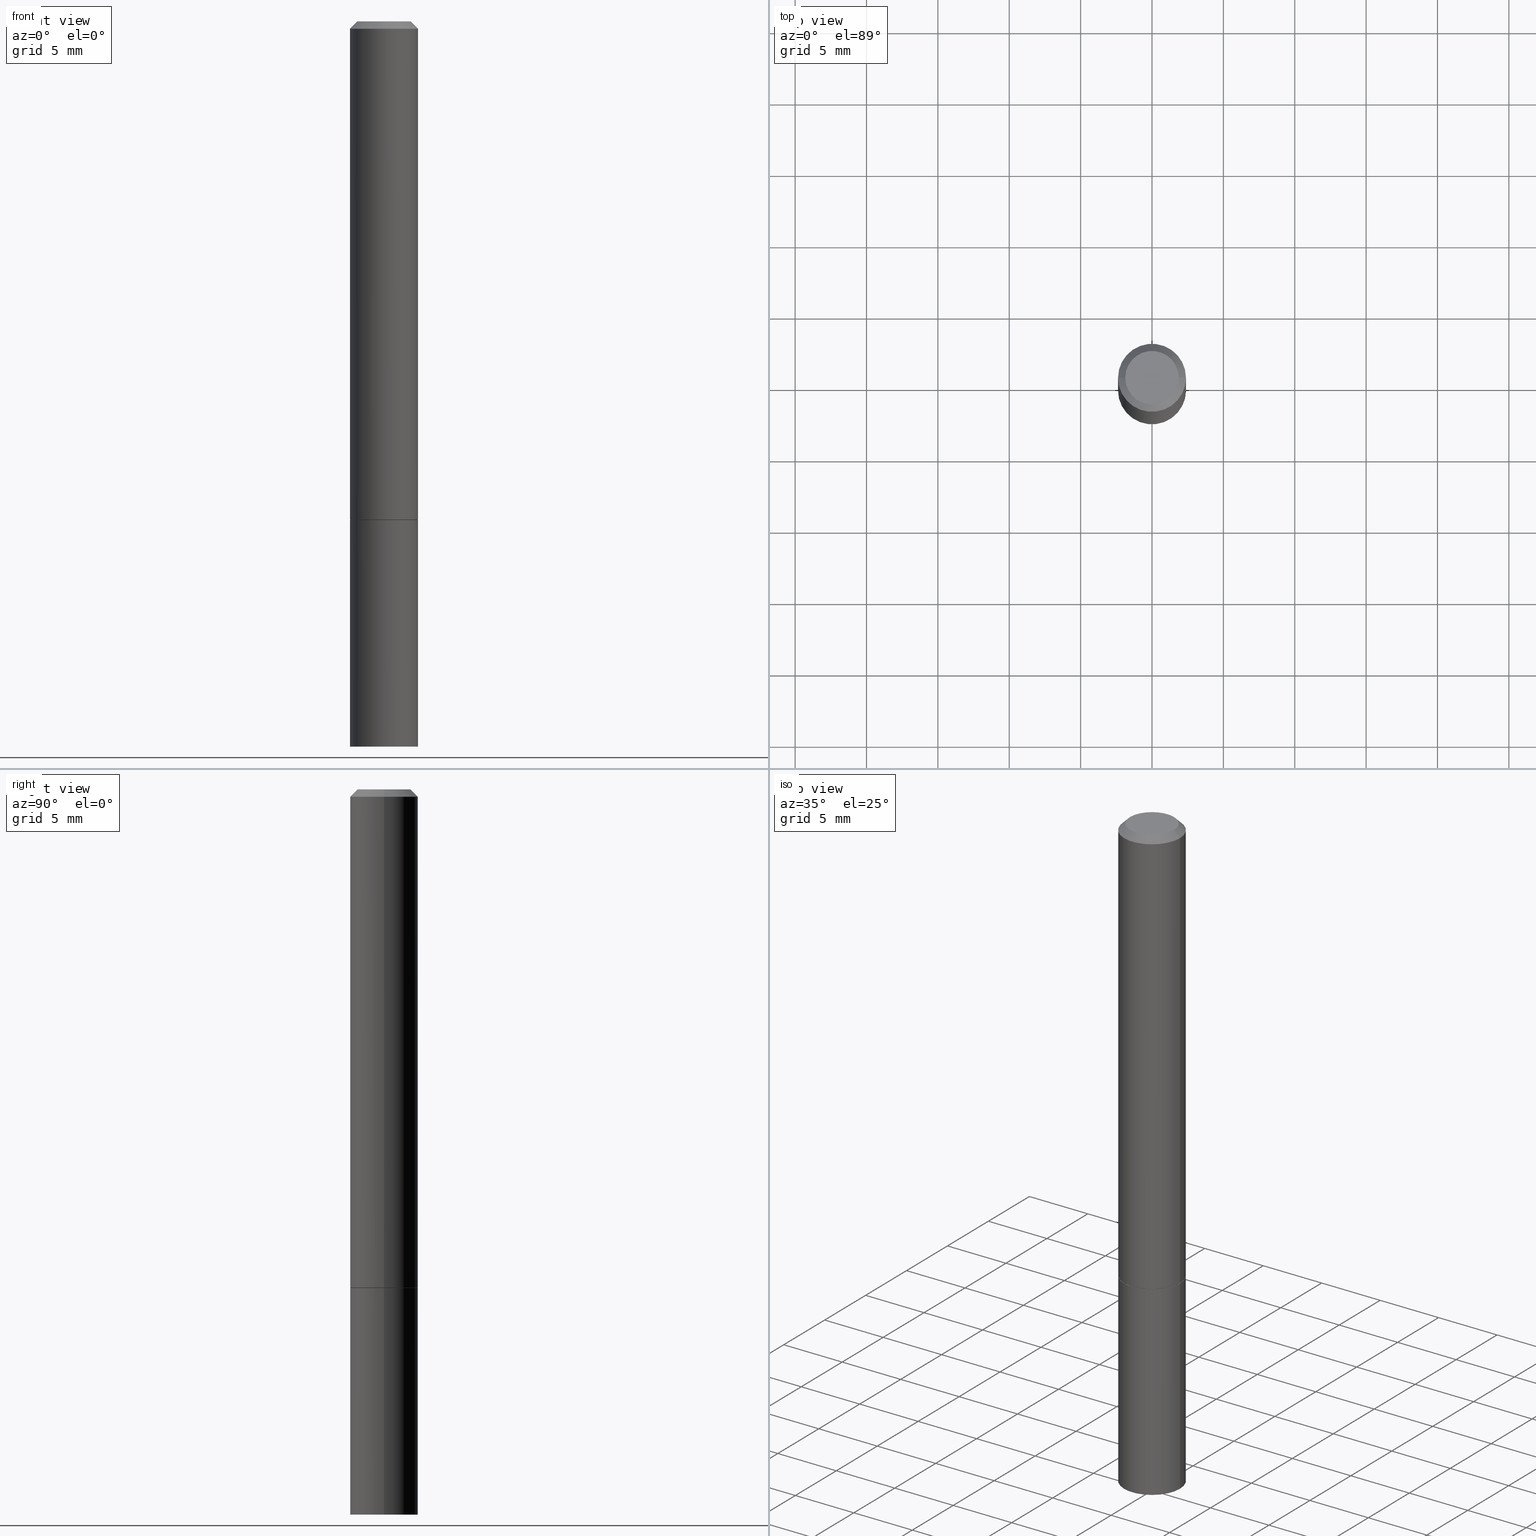
[diagram: canonical four-view strip — front | top / right | iso, engineering-drawing reading convention]
A machine part, canonical four-view strip (front | top / right | iso — engineering-drawing reading convention). The complete STEP part file that produces these views, byte-faithful:
ISO-10303-21;
HEADER;
FILE_DESCRIPTION (( 'STEP AP203' ),
    '1' );
FILE_NAME ('30123.STEP',
    '2023-03-21T20:22:10',
    ( '' ),
    ( '' ),
    'SwSTEP 2.0',
    'SolidWorks 2022',
    '' );
FILE_SCHEMA (( 'CONFIG_CONTROL_DESIGN' ));
ENDSEC;

DATA;
#1 = ORIENTED_EDGE ( 'NONE', *, *, #390, .T. ) ;
#2 = AXIS2_PLACEMENT_3D ( 'NONE', #49, #367, #281 ) ;
#3 = ADVANCED_FACE ( 'NONE', ( #144 ), #203, .T. ) ;
#4 = DIRECTION ( 'NONE',  ( -2.445468806185136597E-29, 3.491481338843145583E-15, 1.000000000000000000 ) ) ;
#5 = CARTESIAN_POINT ( 'NONE',  ( -0.09374999999999984734, -6.328309926653205239E-15, -2.000000000000000000 ) ) ;
#6 = CARTESIAN_POINT ( 'NONE',  ( 0.000000000000000000, 0.000000000000000000, 0.000000000000000000 ) ) ;
#7 = FACE_OUTER_BOUND ( 'NONE', #286, .T. ) ;
#8 = ADVANCED_FACE ( 'NONE', ( #239 ), #84, .T. ) ;
#9 = CARTESIAN_POINT ( 'NONE',  ( 4.890937612370278413E-31, -6.982962677686297772E-17, -0.02000000000000002123 ) ) ;
#10 = DIRECTION ( 'NONE',  ( 1.000000000000000000, -6.982962677686261189E-15, 0.000000000000000000 ) ) ;
#11 =( GEOMETRIC_REPRESENTATION_CONTEXT ( 3 ) GLOBAL_UNCERTAINTY_ASSIGNED_CONTEXT ( ( #295 ) ) GLOBAL_UNIT_ASSIGNED_CONTEXT ( ( #332, #13, #153 ) ) REPRESENTATION_CONTEXT ( 'NONE', 'WORKASPACE' ) );
#12 = EDGE_CURVE ( 'NONE', #236, #191, #89, .T. ) ;
#13 =( NAMED_UNIT ( * ) PLANE_ANGLE_UNIT ( ) SI_UNIT ( $, .RADIAN. ) );
#14 = CARTESIAN_POINT ( 'NONE',  ( -0.09274999999999998523, -4.141758453491831225E-15, -1.374999999999999778 ) ) ;
#15 = DATE_TIME_ROLE ( 'classification_date' ) ;
#16 = LINE ( 'NONE', #305, #102 ) ;
#17 = ORIENTED_EDGE ( 'NONE', *, *, #175, .F. ) ;
#18 = COORDINATED_UNIVERSAL_TIME_OFFSET ( 5, 0, .BEHIND. ) ;
#19 = AXIS2_PLACEMENT_3D ( 'NONE', #60, #146, #85 ) ;
#20 = VERTEX_POINT ( 'NONE', #361 ) ;
#21 = ORGANIZATION ( 'UNSPECIFIED', 'UNSPECIFIED', '' ) ;
#22 = EDGE_CURVE ( 'NONE', #236, #381, #321, .T. ) ;
#23 = COORDINATED_UNIVERSAL_TIME_OFFSET ( 5, 0, .BEHIND. ) ;
#24 = ORIENTED_EDGE ( 'NONE', *, *, #142, .T. ) ;
#25 = CALENDAR_DATE ( 2023, 21, 3 ) ;
#26 = CARTESIAN_POINT ( 'NONE',  ( -0.09375000000000001388, 6.661338147750940229E-16, -4.611501647113973995E-30 ) ) ;
#27 = APPROVAL_STATUS ( 'not_yet_approved' ) ;
#28 = ORIENTED_EDGE ( 'NONE', *, *, #157, .F. ) ;
#29 = VECTOR ( 'NONE', #273, 39.37007874015748854 ) ;
#30 = ORIENTED_EDGE ( 'NONE', *, *, #363, .T. ) ;
#31 = ADVANCED_BREP_SHAPE_REPRESENTATION ( '30123', ( #113, #110, #184 ), #11 ) ;
#32 = APPROVAL ( #105, 'UNSPECIFIED' ) ;
#33 = ADVANCED_FACE ( 'NONE', ( #297 ), #205, .F. ) ;
#34 = APPROVAL ( #227, 'UNSPECIFIED' ) ;
#35 = AXIS2_PLACEMENT_3D ( 'NONE', #101, #43, #271 ) ;
#36 = APPROVAL_PERSON_ORGANIZATION ( #173, #115, #128 ) ;
#37 = DIRECTION ( 'NONE',  ( 1.000000000000000000, -6.982962677686266711E-15, 4.876176775795935793E-29 ) ) ;
#38 = FACE_OUTER_BOUND ( 'NONE', #202, .T. ) ;
#39 = CARTESIAN_POINT ( 'NONE',  ( 0.000000000000000000, 0.000000000000000000, 0.000000000000000000 ) ) ;
#40 = DIRECTION ( 'NONE',  ( -1.000000000000000000, 6.982962677686266711E-15, 0.000000000000000000 ) ) ;
#41 = CARTESIAN_POINT ( 'NONE',  ( 4.890937612370273194E-29, -6.982962677686291165E-15, -2.000000000000000000 ) ) ;
#42 = AXIS2_PLACEMENT_3D ( 'NONE', #217, #304, #211 ) ;
#43 = DIRECTION ( 'NONE',  ( -2.445468806185136597E-29, 3.491481338843145583E-15, 1.000000000000000000 ) ) ;
#44 = DIRECTION ( 'NONE',  ( -2.445468806185136597E-29, 3.491481338843145583E-15, 1.000000000000000000 ) ) ;
#45 = DIRECTION ( 'NONE',  ( 1.000000000000000000, 0.000000000000000000, 0.000000000000000000 ) ) ;
#46 = DIRECTION ( 'NONE',  ( -2.445468806185136597E-29, 3.491481338843145583E-15, 1.000000000000000000 ) ) ;
#47 = LOCAL_TIME ( 16, 22, 10.00000000000000000, #194 ) ;
#48 = ORIENTED_EDGE ( 'NONE', *, *, #249, .F. ) ;
#49 = CARTESIAN_POINT ( 'NONE',  ( 3.362519608504562260E-29, -4.800786840909324930E-15, -1.375000000000000000 ) ) ;
#50 = ORIENTED_EDGE ( 'NONE', *, *, #12, .T. ) ;
#51 = APPROVAL_ROLE ( '' ) ;
#52 = CARTESIAN_POINT ( 'NONE',  ( 3.362519608504561700E-29, -4.800786840909324141E-15, -1.374999999999999778 ) ) ;
#53 = EDGE_CURVE ( 'NONE', #68, #20, #354, .T. ) ;
#54 = ORIENTED_EDGE ( 'NONE', *, *, #59, .F. ) ;
#55 = DATE_AND_TIME ( #280, #47 ) ;
#56 = AXIS2_PLACEMENT_3D ( 'NONE', #333, #373, #181 ) ;
#57 = ORIENTED_EDGE ( 'NONE', *, *, #175, .T. ) ;
#58 = CIRCLE ( 'NONE', #222, 0.09375000000000001388 ) ;
#59 = EDGE_CURVE ( 'NONE', #191, #345, #62, .T. ) ;
#60 = CARTESIAN_POINT ( 'NONE',  ( 5.149934974793613022E-16, 0.07374999999999988509, -2.574967487396815385E-16 ) ) ;
#61 = CC_DESIGN_DATE_AND_TIME_ASSIGNMENT ( #318, #287, ( #343 ) ) ;
#62 = LINE ( 'NONE', #26, #253 ) ;
#63 = CONICAL_SURFACE ( 'NONE', #103, 751.2258538476485228, 1.518436449235072372 ) ;
#64 = VECTOR ( 'NONE', #151, 39.37007874015748143 ) ;
#65 = CIRCLE ( 'NONE', #325, 0.07374999999999988509 ) ;
#66 = DIRECTION ( 'NONE',  ( 1.000000000000000000, -6.982962677686265922E-15, 4.876176775795935793E-29 ) ) ;
#67 = LENGTH_MEASURE_WITH_UNIT ( LENGTH_MEASURE( 0.02539999999999999897 ), #389 );
#68 = VERTEX_POINT ( 'NONE', #330 ) ;
#69 = DIRECTION ( 'NONE',  ( 1.000000000000000000, -6.982962677686265922E-15, 4.876176775795935232E-29 ) ) ;
#70 = VERTEX_POINT ( 'NONE', #258 ) ;
#71 = FACE_OUTER_BOUND ( 'NONE', #75, .T. ) ;
#72 = AXIS2_PLACEMENT_3D ( 'NONE', #9, #277, #40 ) ;
#73 = LINE ( 'NONE', #248, #160 ) ;
#74 = DIRECTION ( 'NONE',  ( 1.000000000000000000, -6.982962677686266711E-15, 4.876176775795935793E-29 ) ) ;
#75 = EDGE_LOOP ( 'NONE', ( #215, #256, #231 ) ) ;
#76 = FACE_OUTER_BOUND ( 'NONE', #311, .T. ) ;
#77 = ADVANCED_FACE ( 'NONE', ( #290 ), #185, .T. ) ;
#78 = CALENDAR_DATE ( 2023, 21, 3 ) ;
#79 = DIRECTION ( 'NONE',  ( 1.000000000000000000, -6.982962677686262766E-15, 0.000000000000000000 ) ) ;
#80 = ORIENTED_EDGE ( 'NONE', *, *, #319, .T. ) ;
#81 = ADVANCED_FACE ( 'NONE', ( #344 ), #221, .T. ) ;
#82 = CLOSED_SHELL ( 'NONE', ( #81, #152, #224, #3, #352 ) ) ;
#83 = ORIENTED_EDGE ( 'NONE', *, *, #206, .T. ) ;
#84 = CYLINDRICAL_SURFACE ( 'NONE', #259, 0.09374999999999991673 ) ;
#85 = DIRECTION ( 'NONE',  ( -1.000000000000000000, 6.982962677686265922E-15, -4.876176775795935793E-29 ) ) ;
#86 = VECTOR ( 'NONE', #118, 39.37007874015748143 ) ;
#87 = ORIENTED_EDGE ( 'NONE', *, *, #88, .F. ) ;
#88 = EDGE_CURVE ( 'NONE', #127, #70, #310, .T. ) ;
#89 = CIRCLE ( 'NONE', #220, 0.09375000000000001388 ) ;
#90 = ORIENTED_EDGE ( 'NONE', *, *, #363, .F. ) ;
#91 = DIRECTION ( 'NONE',  ( 0.000000000000000000, 0.000000000000000000, 1.000000000000000000 ) ) ;
#92 = DIRECTION ( 'NONE',  ( 1.000000000000000000, -6.982962677686262766E-15, 0.000000000000000000 ) ) ;
#93 = CARTESIAN_POINT ( 'NONE',  ( 1.233176954751590042E-19, -6.965808229244704146E-15, -1.995086770692215294 ) ) ;
#94 = FACE_OUTER_BOUND ( 'NONE', #167, .T. ) ;
#95 = AXIS2_PLACEMENT_3D ( 'NONE', #301, #46, #10 ) ;
#96 = CARTESIAN_POINT ( 'NONE',  ( 0.09374999999999984734, -7.626134364977371460E-15, -2.000000000000000000 ) ) ;
#97 = DIRECTION ( 'NONE',  ( -2.445468806185136597E-29, 3.491481338843145583E-15, 1.000000000000000000 ) ) ;
#98 = ORIENTED_EDGE ( 'NONE', *, *, #88, .T. ) ;
#99 = CARTESIAN_POINT ( 'NONE',  ( 6.546527510331211293E-16, 0.09374999999999521216, -1.375000000000000222 ) ) ;
#100 = PLANE ( 'NONE',  #2 ) ;
#101 = CARTESIAN_POINT ( 'NONE',  ( 4.890937612370278413E-31, -6.982962677686297772E-17, -0.02000000000000002123 ) ) ;
#102 = VECTOR ( 'NONE', #129, 39.37007874015748143 ) ;
#103 = AXIS2_PLACEMENT_3D ( 'NONE', #121, #243, #307 ) ;
#104 = AXIS2_PLACEMENT_3D ( 'NONE', #120, #180, #209 ) ;
#105 = APPROVAL_STATUS ( 'not_yet_approved' ) ;
#106 = EDGE_CURVE ( 'NONE', #191, #236, #383, .T. ) ;
#107 = ORIENTED_EDGE ( 'NONE', *, *, #254, .T. ) ;
#108 = ORIENTED_EDGE ( 'NONE', *, *, #59, .T. ) ;
#109 = CONICAL_SURFACE ( 'NONE', #72, 0.09374999999999984734, 0.7853981633974471688 ) ;
#110 = MANIFOLD_SOLID_BREP ( 'Body-Move/Copy2[2]', #349 ) ;
#111 = VERTEX_POINT ( 'NONE', #375 ) ;
#112 = ORIENTED_EDGE ( 'NONE', *, *, #157, .T. ) ;
#113 = MANIFOLD_SOLID_BREP ( 'Body-Move/Copy2[1]', #82 ) ;
#114 = CARTESIAN_POINT ( 'NONE',  ( 0.09375000000000001388, -6.546527510330875041E-16, 4.571415727308690506E-30 ) ) ;
#115 = APPROVAL ( #27, 'UNSPECIFIED' ) ;
#116 = AXIS2_PLACEMENT_3D ( 'NONE', #161, #44, #210 ) ;
#117 = ORIENTED_EDGE ( 'NONE', *, *, #323, .T. ) ;
#118 = DIRECTION ( 'NONE',  ( -2.445468806185136877E-29, 3.491481338843145188E-15, 1.000000000000000000 ) ) ;
#119 = CARTESIAN_POINT ( 'NONE',  ( 4.878836351073985601E-29, -6.965931546940130516E-15, -1.995086770692215294 ) ) ;
#120 = CARTESIAN_POINT ( 'NONE',  ( 4.890937612370278413E-31, -6.982962677686297772E-17, -0.02000000000000002123 ) ) ;
#121 = CARTESIAN_POINT ( 'NONE',  ( 1.011572219194682015E-27, -1.444257034592898076E-13, -41.36516551084969251 ) ) ;
#122 = LINE ( 'NONE', #240, #162 ) ;
#123 = LINE ( 'NONE', #93, #29 ) ;
#124 = PRODUCT_DEFINITION_FORMATION_WITH_SPECIFIED_SOURCE ( 'ANY', '', #196, .NOT_KNOWN. ) ;
#125 = ORIENTED_EDGE ( 'NONE', *, *, #254, .F. ) ;
#126 = DIRECTION ( 'NONE',  ( -2.445468806185136597E-29, 3.491481338843145583E-15, 1.000000000000000000 ) ) ;
#127 = VERTEX_POINT ( 'NONE', #246 ) ;
#128 = APPROVAL_ROLE ( '' ) ;
#129 = DIRECTION ( 'NONE',  ( -0.7071067811865466846, 2.468850131082247989E-15, -0.7071067811865483499 ) ) ;
#130 = CC_DESIGN_PERSON_AND_ORGANIZATION_ASSIGNMENT ( #312, #289, ( #334 ) ) ;
#131 = ORIENTED_EDGE ( 'NONE', *, *, #390, .F. ) ;
#132 = COORDINATED_UNIVERSAL_TIME_OFFSET ( 5, 0, .BEHIND. ) ;
#133 = CIRCLE ( 'NONE', #42, 0.09375000000000001388 ) ;
#134 = ORIENTED_EDGE ( 'NONE', *, *, #159, .F. ) ;
#135 = PERSON_AND_ORGANIZATION ( #200, #21 ) ;
#136 = VERTEX_POINT ( 'NONE', #119 ) ;
#137 = DATE_AND_TIME ( #25, #285 ) ;
#138 = DIRECTION ( 'NONE',  ( -2.445468806185136877E-29, 3.491481338843145188E-15, 1.000000000000000000 ) ) ;
#139 = APPROVAL_ROLE ( '' ) ;
#140 = CONICAL_SURFACE ( 'NONE', #324, 751.2258538476485228, 1.518436449235072372 ) ;
#141 = EDGE_LOOP ( 'NONE', ( #288, #283 ) ) ;
#142 = EDGE_CURVE ( 'NONE', #20, #279, #341, .T. ) ;
#143 = CIRCLE ( 'NONE', #35, 0.09374999999999984734 ) ;
#144 = FACE_OUTER_BOUND ( 'NONE', #379, .T. ) ;
#145 = EDGE_CURVE ( 'NONE', #136, #191, #73, .T. ) ;
#146 = DIRECTION ( 'NONE',  ( 2.438088387897960049E-29, -3.491481338843145188E-15, -1.000000000000000000 ) ) ;
#147 = PLANE ( 'NONE',  #350 ) ;
#148 = DIRECTION ( 'NONE',  ( -2.445468806185136597E-29, 3.491481338843145583E-15, 1.000000000000000000 ) ) ;
#149 = DIRECTION ( 'NONE',  ( 2.438088387897960049E-29, -3.491481338843145188E-15, -1.000000000000000000 ) ) ;
#150 = LOCAL_TIME ( 16, 22, 10.00000000000000000, #132 ) ;
#151 = DIRECTION ( 'NONE',  ( 0.7071067811865466846, -7.319954787623252890E-15, -0.7071067811865483499 ) ) ;
#152 = ADVANCED_FACE ( 'NONE', ( #76 ), #140, .F. ) ;
#153 =( NAMED_UNIT ( * ) SI_UNIT ( $, .STERADIAN. ) SOLID_ANGLE_UNIT ( ) );
#154 = DIRECTION ( 'NONE',  ( -0.9986295347545742773, 6.790662755453662155E-15, -0.05233595624293820026 ) ) ;
#155 = DIRECTION ( 'NONE',  ( -1.000000000000000000, 6.982962677686265922E-15, -4.876176775795935793E-29 ) ) ;
#156 = LINE ( 'NONE', #274, #292 ) ;
#157 = EDGE_CURVE ( 'NONE', #345, #381, #358, .T. ) ;
#158 = MECHANICAL_CONTEXT ( 'NONE', #382, 'mechanical' ) ;
#159 = EDGE_CURVE ( 'NONE', #381, #345, #261, .T. ) ;
#160 = VECTOR ( 'NONE', #154, 39.37007874015748854 ) ;
#161 = CARTESIAN_POINT ( 'NONE',  ( 3.362519608504561700E-29, -4.800786840909324141E-15, -1.374999999999999778 ) ) ;
#162 = VECTOR ( 'NONE', #270, 39.37007874015748143 ) ;
#163 = ORIENTED_EDGE ( 'NONE', *, *, #106, .F. ) ;
#164 = APPLICATION_PROTOCOL_DEFINITION ( 'international standard', 'config_control_design', 1994, #166 ) ;
#165 = DIRECTION ( 'NONE',  ( 1.000000000000000000, -6.982962677686265922E-15, 4.876176775795935793E-29 ) ) ;
#166 = APPLICATION_CONTEXT ( 'configuration controlled 3d designs of mechanical parts and assemblies' ) ;
#167 = EDGE_LOOP ( 'NONE', ( #87, #299, #376, #57 ) ) ;
#168 = CALENDAR_DATE ( 2023, 21, 3 ) ;
#169 = DIRECTION ( 'NONE',  ( -2.445468806185136597E-29, 3.491481338843145583E-15, 1.000000000000000000 ) ) ;
#170 = CALENDAR_DATE ( 2023, 21, 3 ) ;
#171 = APPROVAL_PERSON_ORGANIZATION ( #223, #34, #51 ) ;
#172 = PERSON_AND_ORGANIZATION_ROLE ( 'creator' ) ;
#173 = PERSON_AND_ORGANIZATION ( #200, #21 ) ;
#174 = DIRECTION ( 'NONE',  ( -2.445468806185136877E-29, 3.491481338843145188E-15, 1.000000000000000000 ) ) ;
#175 = EDGE_CURVE ( 'NONE', #320, #70, #143, .T. ) ;
#176 = EDGE_LOOP ( 'NONE', ( #235, #80, #107, #265 ) ) ;
#177 = CC_DESIGN_PERSON_AND_ORGANIZATION_ASSIGNMENT ( #218, #198, ( #124 ) ) ;
#178 = DIRECTION ( 'NONE',  ( -2.445468806185136597E-29, 3.491481338843145583E-15, 1.000000000000000000 ) ) ;
#179 = ORIENTED_EDGE ( 'NONE', *, *, #145, .F. ) ;
#180 = DIRECTION ( 'NONE',  ( 2.445468806185136597E-29, -3.491481338843145583E-15, -1.000000000000000000 ) ) ;
#181 = DIRECTION ( 'NONE',  ( 1.000000000000000000, -6.982962677686261189E-15, 0.000000000000000000 ) ) ;
#182 = CC_DESIGN_PERSON_AND_ORGANIZATION_ASSIGNMENT ( #187, #189, ( #196 ) ) ;
#183 = VECTOR ( 'NONE', #138, 39.37007874015748143 ) ;
#184 = AXIS2_PLACEMENT_3D ( 'NONE', #186, #91, #45 ) ;
#185 = CYLINDRICAL_SURFACE ( 'NONE', #368, 0.09374999999999991673 ) ;
#186 = CARTESIAN_POINT ( 'NONE',  ( 0.000000000000000000, 0.000000000000000000, 0.000000000000000000 ) ) ;
#187 = PERSON_AND_ORGANIZATION ( #200, #21 ) ;
#188 = DIRECTION ( 'NONE',  ( 1.000000000000000000, -6.982962677686266711E-15, 0.000000000000000000 ) ) ;
#189 = PERSON_AND_ORGANIZATION_ROLE ( 'design_owner' ) ;
#190 = DIRECTION ( 'NONE',  ( -1.000000000000000000, 6.982962677686266711E-15, 0.000000000000000000 ) ) ;
#191 = VERTEX_POINT ( 'NONE', #5 ) ;
#192 = SECURITY_CLASSIFICATION_LEVEL ( 'unclassified' ) ;
#193 = DIRECTION ( 'NONE',  ( -0.7071067811866259545, 7.493145998870638150E-15, 0.7071067811864690800 ) ) ;
#194 = COORDINATED_UNIVERSAL_TIME_OFFSET ( 5, 0, .BEHIND. ) ;
#195 = DIRECTION ( 'NONE',  ( 0.7071067811866259545, -2.468850131083078659E-15, 0.7071067811864690800 ) ) ;
#196 = PRODUCT ( '30123', '30123', '', ( #158 ) ) ;
#197 = VERTEX_POINT ( 'NONE', #365 ) ;
#198 = PERSON_AND_ORGANIZATION_ROLE ( 'design_supplier' ) ;
#199 = PERSON_AND_ORGANIZATION ( #200, #21 ) ;
#200 = PERSON ( 'UNSPECIFIED', 'UNSPECIFIED', 'UNSPECIFIED', ('UNSPECIFIED'), ('UNSPECIFIED'), ('UNSPECIFIED') ) ;
#201 = ORIENTED_EDGE ( 'NONE', *, *, #53, .F. ) ;
#202 = EDGE_LOOP ( 'NONE', ( #232, #112 ) ) ;
#203 = CYLINDRICAL_SURFACE ( 'NONE', #229, 0.09375000000000001388 ) ;
#204 = AXIS2_PLACEMENT_3D ( 'NONE', #6, #4, #364 ) ;
#205 = PLANE ( 'NONE',  #19 ) ;
#206 = EDGE_CURVE ( 'NONE', #136, #236, #123, .T. ) ;
#207 = DIRECTION ( 'NONE',  ( -2.445468806185136597E-29, 3.491481338843145583E-15, 1.000000000000000000 ) ) ;
#208 = ORIENTED_EDGE ( 'NONE', *, *, #106, .T. ) ;
#209 = DIRECTION ( 'NONE',  ( -1.000000000000000000, 6.982962677686266711E-15, 0.000000000000000000 ) ) ;
#210 = DIRECTION ( 'NONE',  ( 1.000000000000000000, -6.982962677686262766E-15, 0.000000000000000000 ) ) ;
#211 = DIRECTION ( 'NONE',  ( 1.000000000000000000, -6.982962677686261189E-15, 0.000000000000000000 ) ) ;
#212 = ADVANCED_FACE ( 'NONE', ( #7 ), #291, .T. ) ;
#213 = CARTESIAN_POINT ( 'NONE',  ( 4.890937612370278413E-31, -6.982962677686297772E-17, -0.02000000000000002123 ) ) ;
#214 = CARTESIAN_POINT ( 'NONE',  ( 1.011572219194682015E-27, -1.444257034592898076E-13, -41.36516551084969251 ) ) ;
#215 = ORIENTED_EDGE ( 'NONE', *, *, #206, .F. ) ;
#216 = PRODUCT_DEFINITION_SHAPE ( 'NONE', 'NONE',  #343 ) ;
#217 = CARTESIAN_POINT ( 'NONE',  ( 3.360074139698377778E-29, -4.797295359570481134E-15, -1.373999999999999888 ) ) ;
#218 = PERSON_AND_ORGANIZATION ( #200, #21 ) ;
#219 = DIRECTION ( 'NONE',  ( -2.445468806185136597E-29, 3.491481338843145583E-15, 1.000000000000000000 ) ) ;
#220 = AXIS2_PLACEMENT_3D ( 'NONE', #356, #263, #262 ) ;
#221 = CYLINDRICAL_SURFACE ( 'NONE', #328, 0.09375000000000001388 ) ;
#222 = AXIS2_PLACEMENT_3D ( 'NONE', #247, #360, #242 ) ;
#223 = PERSON_AND_ORGANIZATION ( #200, #21 ) ;
#224 = ADVANCED_FACE ( 'NONE', ( #71 ), #63, .F. ) ;
#225 = ADVANCED_FACE ( 'NONE', ( #278 ), #100, .F. ) ;
#226 = EDGE_LOOP ( 'NONE', ( #201, #252 ) ) ;
#227 = APPROVAL_STATUS ( 'not_yet_approved' ) ;
#228 = ORIENTED_EDGE ( 'NONE', *, *, #323, .F. ) ;
#229 = AXIS2_PLACEMENT_3D ( 'NONE', #351, #178, #66 ) ;
#230 = APPROVAL_PERSON_ORGANIZATION ( #378, #32, #139 ) ;
#231 = ORIENTED_EDGE ( 'NONE', *, *, #12, .F. ) ;
#232 = ORIENTED_EDGE ( 'NONE', *, *, #159, .T. ) ;
#233 = AXIS2_PLACEMENT_3D ( 'NONE', #357, #322, #92 ) ;
#234 = LOCAL_TIME ( 16, 22, 10.00000000000000000, #18 ) ;
#235 = ORIENTED_EDGE ( 'NONE', *, *, #142, .F. ) ;
#236 = VERTEX_POINT ( 'NONE', #96 ) ;
#237 = LOCAL_TIME ( 16, 22, 10.00000000000000000, #315 ) ;
#238 = APPLICATION_PROTOCOL_DEFINITION ( 'international standard', 'config_control_design', 1994, #382 ) ;
#239 = FACE_OUTER_BOUND ( 'NONE', #316, .T. ) ;
#240 = CARTESIAN_POINT ( 'NONE',  ( 0.09374999999999991673, -6.546527510330869125E-16, 4.571415727308685602E-30 ) ) ;
#241 = DIRECTION ( 'NONE',  ( 2.445468806185136597E-29, -3.491481338843145583E-15, -1.000000000000000000 ) ) ;
#242 = DIRECTION ( 'NONE',  ( 1.000000000000000000, -6.982962677686261189E-15, 0.000000000000000000 ) ) ;
#243 = DIRECTION ( 'NONE',  ( 2.445468806185136597E-29, -3.491481338843145583E-15, -1.000000000000000000 ) ) ;
#244 = CC_DESIGN_APPROVAL ( #115, ( #343 ) ) ;
#245 = DIRECTION ( 'NONE',  ( -2.445468806185136597E-29, 3.491481338843145583E-15, 1.000000000000000000 ) ) ;
#246 = CARTESIAN_POINT ( 'NONE',  ( 0.07374999999999988509, -6.094815207017963170E-16, 3.931526600461599449E-30 ) ) ;
#247 = CARTESIAN_POINT ( 'NONE',  ( 3.360074139698377778E-29, -4.797295359570481134E-15, -1.373999999999999888 ) ) ;
#248 = CARTESIAN_POINT ( 'NONE',  ( -1.233176953775805598E-19, -6.965808229244704146E-15, -1.995086770692215294 ) ) ;
#249 = EDGE_CURVE ( 'NONE', #70, #320, #268, .T. ) ;
#250 = CARTESIAN_POINT ( 'NONE',  ( 0.000000000000000000, 0.000000000000000000, 0.000000000000000000 ) ) ;
#251 = EDGE_CURVE ( 'NONE', #197, #320, #16, .T. ) ;
#252 = ORIENTED_EDGE ( 'NONE', *, *, #319, .F. ) ;
#253 = VECTOR ( 'NONE', #174, 39.37007874015748143 ) ;
#254 = EDGE_CURVE ( 'NONE', #68, #111, #156, .T. ) ;
#255 = DATE_AND_TIME ( #168, #150 ) ;
#256 = ORIENTED_EDGE ( 'NONE', *, *, #145, .T. ) ;
#257 = APPROVAL_DATE_TIME ( #137, #115 ) ;
#258 = CARTESIAN_POINT ( 'NONE',  ( 0.09374999999999984734, -7.130013140679430017E-16, -0.02000000000000002123 ) ) ;
#259 = AXIS2_PLACEMENT_3D ( 'NONE', #39, #148, #37 ) ;
#260 = EDGE_LOOP ( 'NONE', ( #228, #293, #1, #17 ) ) ;
#261 = CIRCLE ( 'NONE', #95, 0.09375000000000001388 ) ;
#262 = DIRECTION ( 'NONE',  ( 1.000000000000000000, -6.982962677686261189E-15, 0.000000000000000000 ) ) ;
#263 = DIRECTION ( 'NONE',  ( -2.445468806185136597E-29, 3.491481338843145583E-15, 1.000000000000000000 ) ) ;
#264 = LINE ( 'NONE', #300, #86 ) ;
#265 = ORIENTED_EDGE ( 'NONE', *, *, #309, .F. ) ;
#266 = AXIS2_PLACEMENT_3D ( 'NONE', #213, #336, #188 ) ;
#267 = CC_DESIGN_PERSON_AND_ORGANIZATION_ASSIGNMENT ( #199, #380, ( #343 ) ) ;
#268 = CIRCLE ( 'NONE', #266, 0.09374999999999984734 ) ;
#269 = CONICAL_SURFACE ( 'NONE', #359, 0.09274999999999998523, 0.7853981633975591903 ) ;
#270 = DIRECTION ( 'NONE',  ( -2.445468806185136877E-29, 3.491481338843145188E-15, 1.000000000000000000 ) ) ;
#271 = DIRECTION ( 'NONE',  ( 1.000000000000000000, -6.982962677686266711E-15, 0.000000000000000000 ) ) ;
#272 = FACE_OUTER_BOUND ( 'NONE', #331, .T. ) ;
#273 = DIRECTION ( 'NONE',  ( 0.9986295347545742773, -7.033825938272001856E-15, -0.05233595624293820026 ) ) ;
#274 = CARTESIAN_POINT ( 'NONE',  ( 0.09274999999999998523, -5.448456629264724842E-15, -1.374999999999999778 ) ) ;
#275 = AXIS2_PLACEMENT_3D ( 'NONE', #41, #97, #303 ) ;
#276 = CIRCLE ( 'NONE', #204, 0.07374999999999988509 ) ;
#277 = DIRECTION ( 'NONE',  ( 2.445468806185136597E-29, -3.491481338843145583E-15, -1.000000000000000000 ) ) ;
#278 = FACE_OUTER_BOUND ( 'NONE', #226, .T. ) ;
#279 = VERTEX_POINT ( 'NONE', #282 ) ;
#280 = CALENDAR_DATE ( 2023, 21, 3 ) ;
#281 = DIRECTION ( 'NONE',  ( 1.000000000000000000, -6.982962677686265922E-15, 4.876176775795935793E-29 ) ) ;
#282 = CARTESIAN_POINT ( 'NONE',  ( -0.09375000000000001388, -1.767428678398575728E-15, -1.373999999999999888 ) ) ;
#283 = ORIENTED_EDGE ( 'NONE', *, *, #326, .T. ) ;
#284 = APPROVAL_DATE_TIME ( #55, #32 ) ;
#285 = LOCAL_TIME ( 16, 22, 10.00000000000000000, #23 ) ;
#286 = EDGE_LOOP ( 'NONE', ( #353, #24, #90, #125 ) ) ;
#287 = DATE_TIME_ROLE ( 'creation_date' ) ;
#288 = ORIENTED_EDGE ( 'NONE', *, *, #362, .T. ) ;
#289 = PERSON_AND_ORGANIZATION_ROLE ( 'classification_officer' ) ;
#290 = FACE_OUTER_BOUND ( 'NONE', #260, .T. ) ;
#291 = CONICAL_SURFACE ( 'NONE', #116, 0.09274999999999998523, 0.7853981633975591903 ) ;
#292 = VECTOR ( 'NONE', #195, 39.37007874015748143 ) ;
#293 = ORIENTED_EDGE ( 'NONE', *, *, #309, .T. ) ;
#294 = ADVANCED_FACE ( 'NONE', ( #313 ), #269, .T. ) ;
#295 = UNCERTAINTY_MEASURE_WITH_UNIT (LENGTH_MEASURE( 1.000000000000000082E-05 ), #332, 'distance_accuracy_value', 'NONE');
#296 = ADVANCED_FACE ( 'NONE', ( #272 ), #329, .T. ) ;
#297 = FACE_OUTER_BOUND ( 'NONE', #141, .T. ) ;
#298 = CARTESIAN_POINT ( 'NONE',  ( -0.09374999999999984734, 5.848231242562234171E-16, -0.02000000000000002123 ) ) ;
#299 = ORIENTED_EDGE ( 'NONE', *, *, #362, .F. ) ;
#300 = CARTESIAN_POINT ( 'NONE',  ( -0.09374999999999991673, 6.661338147750933326E-16, -4.611501647113969791E-30 ) ) ;
#301 = CARTESIAN_POINT ( 'NONE',  ( 3.362519608504562260E-29, -4.800786840909324930E-15, -1.375000000000000000 ) ) ;
#302 = CC_DESIGN_APPROVAL ( #32, ( #124 ) ) ;
#303 = DIRECTION ( 'NONE',  ( 1.000000000000000000, -6.982962677686261189E-15, 0.000000000000000000 ) ) ;
#304 = DIRECTION ( 'NONE',  ( -2.445468806185136597E-29, 3.491481338843145583E-15, 1.000000000000000000 ) ) ;
#305 = CARTESIAN_POINT ( 'NONE',  ( -0.09374999999999984734, 5.848231242562234171E-16, -0.02000000000000002123 ) ) ;
#306 = DIMENSIONAL_EXPONENTS ( 1.000000000000000000, 0.000000000000000000, 0.000000000000000000, 0.000000000000000000, 0.000000000000000000, 0.000000000000000000, 0.000000000000000000 ) ;
#307 = DIRECTION ( 'NONE',  ( -1.000000000000000000, 6.982962677686266711E-15, 0.000000000000000000 ) ) ;
#308 = ORIENTED_EDGE ( 'NONE', *, *, #22, .T. ) ;
#309 = EDGE_CURVE ( 'NONE', #279, #111, #58, .T. ) ;
#310 = LINE ( 'NONE', #371, #64 ) ;
#311 = EDGE_LOOP ( 'NONE', ( #179, #83, #163 ) ) ;
#312 = PERSON_AND_ORGANIZATION ( #200, #21 ) ;
#313 = FACE_OUTER_BOUND ( 'NONE', #176, .T. ) ;
#314 = ORIENTED_EDGE ( 'NONE', *, *, #22, .F. ) ;
#315 = COORDINATED_UNIVERSAL_TIME_OFFSET ( 5, 0, .BEHIND. ) ;
#316 = EDGE_LOOP ( 'NONE', ( #30, #117, #48, #131 ) ) ;
#317 = VECTOR ( 'NONE', #193, 39.37007874015748143 ) ;
#318 = DATE_AND_TIME ( #170, #237 ) ;
#319 = EDGE_CURVE ( 'NONE', #20, #68, #355, .T. ) ;
#320 = VERTEX_POINT ( 'NONE', #298 ) ;
#321 = LINE ( 'NONE', #114, #183 ) ;
#322 = DIRECTION ( 'NONE',  ( -2.445468806185136597E-29, 3.491481338843145583E-15, 1.000000000000000000 ) ) ;
#323 = EDGE_CURVE ( 'NONE', #279, #320, #264, .T. ) ;
#324 = AXIS2_PLACEMENT_3D ( 'NONE', #214, #241, #190 ) ;
#325 = AXIS2_PLACEMENT_3D ( 'NONE', #372, #207, #69 ) ;
#326 = EDGE_CURVE ( 'NONE', #127, #197, #276, .T. ) ;
#327 = ORIENTED_EDGE ( 'NONE', *, *, #251, .F. ) ;
#328 = AXIS2_PLACEMENT_3D ( 'NONE', #338, #126, #165 ) ;
#329 = CONICAL_SURFACE ( 'NONE', #104, 0.09374999999999984734, 0.7853981633974471688 ) ;
#330 = CARTESIAN_POINT ( 'NONE',  ( 0.09274999999999998523, -5.448456629264724842E-15, -1.374999999999999778 ) ) ;
#331 = EDGE_LOOP ( 'NONE', ( #387, #98, #347, #327 ) ) ;
#332 =( CONVERSION_BASED_UNIT ( 'INCH', #67 ) LENGTH_UNIT ( ) NAMED_UNIT ( #306 ) );
#333 = CARTESIAN_POINT ( 'NONE',  ( 3.362519608504562260E-29, -4.800786840909324930E-15, -1.375000000000000000 ) ) ;
#334 = SECURITY_CLASSIFICATION ( '', '', #192 ) ;
#335 = CARTESIAN_POINT ( 'NONE',  ( 0.09375000000000001388, -5.455439591942412434E-15, -1.375000000000000000 ) ) ;
#336 = DIRECTION ( 'NONE',  ( -2.445468806185136597E-29, 3.491481338843145583E-15, 1.000000000000000000 ) ) ;
#337 = CARTESIAN_POINT ( 'NONE',  ( -0.09375000000000001388, -5.225740944522714123E-15, -1.375000000000000000 ) ) ;
#338 = CARTESIAN_POINT ( 'NONE',  ( 0.000000000000000000, 0.000000000000000000, 0.000000000000000000 ) ) ;
#339 = ADVANCED_FACE ( 'NONE', ( #94 ), #109, .T. ) ;
#340 = SHAPE_DEFINITION_REPRESENTATION ( #216, #31 ) ;
#341 = LINE ( 'NONE', #14, #317 ) ;
#342 = CC_DESIGN_SECURITY_CLASSIFICATION ( #334, ( #124 ) ) ;
#343 = PRODUCT_DEFINITION ( 'UNKNOWN', '', #124, #385 ) ;
#344 = FACE_OUTER_BOUND ( 'NONE', #388, .T. ) ;
#345 = VERTEX_POINT ( 'NONE', #337 ) ;
#346 = CC_DESIGN_PERSON_AND_ORGANIZATION_ASSIGNMENT ( #135, #172, ( #124 ) ) ;
#347 = ORIENTED_EDGE ( 'NONE', *, *, #249, .T. ) ;
#348 = DATE_AND_TIME ( #78, #234 ) ;
#349 = CLOSED_SHELL ( 'NONE', ( #212, #8, #296, #339, #77, #294, #225, #33 ) ) ;
#350 = AXIS2_PLACEMENT_3D ( 'NONE', #99, #149, #155 ) ;
#351 = CARTESIAN_POINT ( 'NONE',  ( 0.000000000000000000, 0.000000000000000000, 0.000000000000000000 ) ) ;
#352 = ADVANCED_FACE ( 'NONE', ( #38 ), #147, .F. ) ;
#353 = ORIENTED_EDGE ( 'NONE', *, *, #53, .T. ) ;
#354 = CIRCLE ( 'NONE', #233, 0.09274999999999998523 ) ;
#355 = CIRCLE ( 'NONE', #369, 0.09274999999999998523 ) ;
#356 = CARTESIAN_POINT ( 'NONE',  ( 4.890937612370273194E-29, -6.982962677686291165E-15, -2.000000000000000000 ) ) ;
#357 = CARTESIAN_POINT ( 'NONE',  ( 3.362519608504561700E-29, -4.800786840909324141E-15, -1.374999999999999778 ) ) ;
#358 = CIRCLE ( 'NONE', #56, 0.09375000000000001388 ) ;
#359 = AXIS2_PLACEMENT_3D ( 'NONE', #52, #169, #79 ) ;
#360 = DIRECTION ( 'NONE',  ( -2.445468806185136597E-29, 3.491481338843145583E-15, 1.000000000000000000 ) ) ;
#361 = CARTESIAN_POINT ( 'NONE',  ( -0.09274999999999998523, -4.136459999143609611E-15, -1.374999999999999778 ) ) ;
#362 = EDGE_CURVE ( 'NONE', #197, #127, #65, .T. ) ;
#363 = EDGE_CURVE ( 'NONE', #111, #279, #133, .T. ) ;
#364 = DIRECTION ( 'NONE',  ( 1.000000000000000000, -6.982962677686265922E-15, 4.876176775795935232E-29 ) ) ;
#365 = CARTESIAN_POINT ( 'NONE',  ( -0.07374999999999988509, 5.499083108677923596E-16, -3.723527850031187664E-30 ) ) ;
#366 = CARTESIAN_POINT ( 'NONE',  ( 3.362519608504561700E-29, -4.800786840909324141E-15, -1.374999999999999778 ) ) ;
#367 = DIRECTION ( 'NONE',  ( -2.438088387897960049E-29, 3.491481338843145188E-15, 1.000000000000000000 ) ) ;
#368 = AXIS2_PLACEMENT_3D ( 'NONE', #250, #219, #74 ) ;
#369 = AXIS2_PLACEMENT_3D ( 'NONE', #366, #245, #370 ) ;
#370 = DIRECTION ( 'NONE',  ( 1.000000000000000000, -6.982962677686262766E-15, 0.000000000000000000 ) ) ;
#371 = CARTESIAN_POINT ( 'NONE',  ( 0.09374999999999984734, -7.130013140679430017E-16, -0.02000000000000002123 ) ) ;
#372 = CARTESIAN_POINT ( 'NONE',  ( 0.000000000000000000, 0.000000000000000000, 0.000000000000000000 ) ) ;
#373 = DIRECTION ( 'NONE',  ( -2.445468806185136597E-29, 3.491481338843145583E-15, 1.000000000000000000 ) ) ;
#374 = PRODUCT_RELATED_PRODUCT_CATEGORY ( 'detail', '', ( #196 ) ) ;
#375 = CARTESIAN_POINT ( 'NONE',  ( 0.09375000000000001388, -5.451948110603568638E-15, -1.373999999999999888 ) ) ;
#376 = ORIENTED_EDGE ( 'NONE', *, *, #251, .T. ) ;
#377 = APPROVAL_DATE_TIME ( #255, #34 ) ;
#378 = PERSON_AND_ORGANIZATION ( #200, #21 ) ;
#379 = EDGE_LOOP ( 'NONE', ( #54, #208, #308, #28 ) ) ;
#380 = PERSON_AND_ORGANIZATION_ROLE ( 'creator' ) ;
#381 = VERTEX_POINT ( 'NONE', #335 ) ;
#382 = APPLICATION_CONTEXT ( 'configuration controlled 3d designs of mechanical parts and assemblies' ) ;
#383 = CIRCLE ( 'NONE', #275, 0.09375000000000001388 ) ;
#384 = CC_DESIGN_APPROVAL ( #34, ( #334 ) ) ;
#385 = DESIGN_CONTEXT ( 'detailed design', #166, 'design' ) ;
#386 = CC_DESIGN_DATE_AND_TIME_ASSIGNMENT ( #348, #15, ( #334 ) ) ;
#387 = ORIENTED_EDGE ( 'NONE', *, *, #326, .F. ) ;
#388 = EDGE_LOOP ( 'NONE', ( #50, #108, #134, #314 ) ) ;
#389 =( LENGTH_UNIT ( ) NAMED_UNIT ( * ) SI_UNIT ( $, .METRE. ) );
#390 = EDGE_CURVE ( 'NONE', #111, #70, #122, .T. ) ;
ENDSEC;
END-ISO-10303-21;
